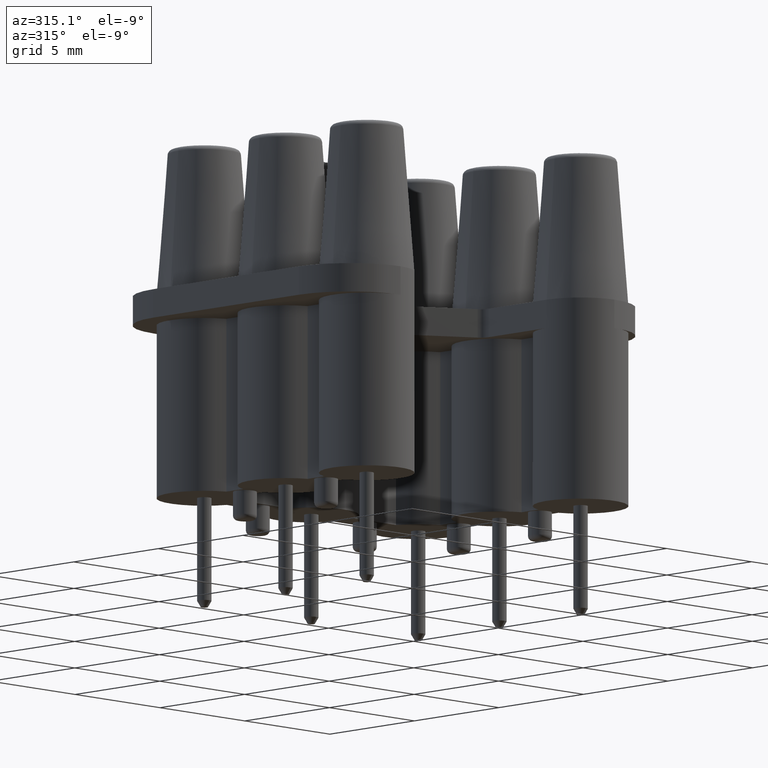
[diagram: clean part render]
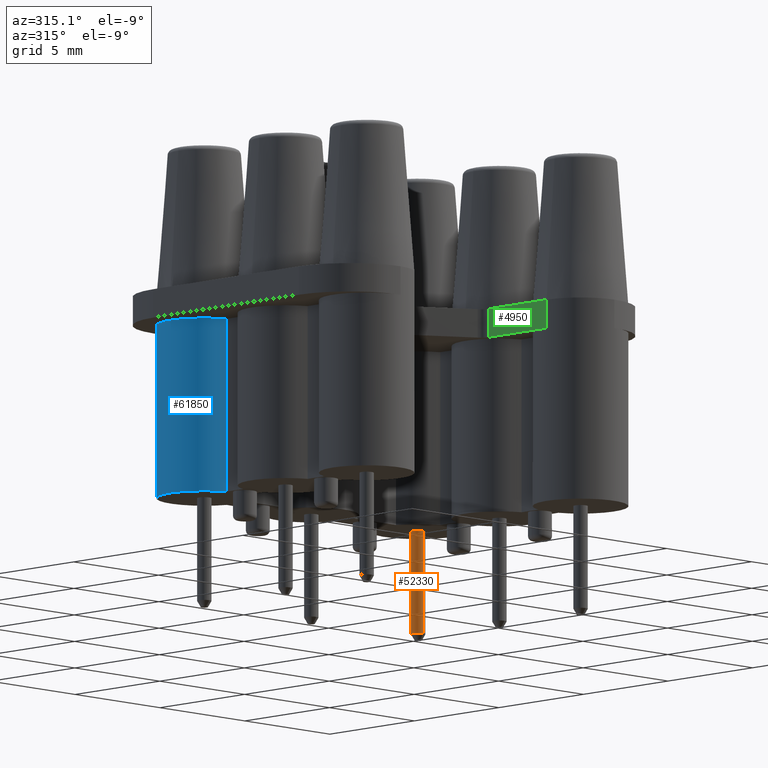
[diagram: same view with three faces highlighted in distinct colors, each labeled with its STEP entity id]
A machine part, auxiliary view with three faces highlighted in distinct colors.
Their STEP definitions:

[orange] entity #52330 — the highlighted cylindrical surface (edge-blend (fillet) strip) has radius 0.3 mm, axis along (0, 0, -1).
#24580=CARTESIAN_POINT('',(37.7129610115911,58.9,12.840192313523));
#24590=VERTEX_POINT('',#24580);
#24670=CARTESIAN_POINT('',(37.7129610115911,58.3,12.840192313523));
#24680=VERTEX_POINT('',#24670);
#24710=CARTESIAN_POINT('',(37.7129610115911,58.6,12.840192313523));
#24720=DIRECTION('',(0.,0.,1.));
#24730=DIRECTION('',(0.,-1.,0.));
#24740=AXIS2_PLACEMENT_3D('',#24710,#24720,#24730);
#24750=CIRCLE('',#24740,0.3);
#25150=CARTESIAN_POINT('',(37.7129610115911,58.9,8.52009612409068));
#25160=DIRECTION('',(0.,0.,1.));
#25170=VECTOR('',#25160,1.);
#25180=LINE('',#25150,#25170);
#25190=CARTESIAN_POINT('',(37.7129610115911,58.9,8.5));
#25200=VERTEX_POINT('',#25190);
#25210=EDGE_CURVE('',#25200,#24590,#25180,.T.);
#25240=CARTESIAN_POINT('',(37.7129610115911,58.3,8.52009612409068));
#25250=DIRECTION('',(0.,0.,1.));
#25260=VECTOR('',#25250,1.);
#25270=LINE('',#25240,#25260);
#25280=CARTESIAN_POINT('',(37.7129610115911,58.3,8.5));
#25290=VERTEX_POINT('',#25280);
#25300=EDGE_CURVE('',#25290,#24680,#25270,.T.);
#25320=CARTESIAN_POINT('',(37.7129610115911,58.6,8.5));
#25330=DIRECTION('',(0.,0.,1.));
#25340=DIRECTION('',(0.,-1.,0.));
#25350=AXIS2_PLACEMENT_3D('',#25320,#25330,#25340);
#25360=CIRCLE('',#25350,0.3);
#34360=EDGE_CURVE('',#25290,#25200,#25360,.T.);
#52210=CARTESIAN_POINT('',(37.7129610115911,58.6,8.52009612409068));
#52220=DIRECTION('',(0.,0.,1.));
#52230=DIRECTION('',(0.,-1.,0.));
#52240=AXIS2_PLACEMENT_3D('',#52210,#52220,#52230);
#52250=CYLINDRICAL_SURFACE('',#52240,0.3);
#52260=EDGE_CURVE('',#24680,#24590,#24750,.T.);
#52270=ORIENTED_EDGE('',*,*,#52260,.F.);
#52280=ORIENTED_EDGE('',*,*,#25210,.T.);
#52290=ORIENTED_EDGE('',*,*,#34360,.T.);
#52300=ORIENTED_EDGE('',*,*,#25300,.F.);
#52310=EDGE_LOOP('',(#52300,#52290,#52280,#52270));
#52320=FACE_OUTER_BOUND('',#52310,.T.);
#52330=ADVANCED_FACE('',(#52320),#52250,.T.);

[blue] entity #61850 — the highlighted cylindrical surface (partial cylindrical patch) has radius 2 mm, axis along (0, 0, -1).
#1320=CARTESIAN_POINT('',(50.9129610115911,56.6921212081563,1.2));
#1330=VERTEX_POINT('',#1320);
#1360=CARTESIAN_POINT('',(50.3129610115911,58.6,1.2));
#1370=DIRECTION('',(0.,0.,-1.));
#1380=DIRECTION('',(1.,0.,0.));
#1390=AXIS2_PLACEMENT_3D('',#1360,#1370,#1380);
#1400=CIRCLE('',#1390,2.00000037109169);
#1410=CARTESIAN_POINT('',(48.4050822197475,59.2,1.2));
#1420=VERTEX_POINT('',#1410);
#1430=EDGE_CURVE('',#1420,#1330,#1400,.T.);
#10440=CARTESIAN_POINT('',(50.9129610115911,56.6921212081563,8.5));
#10450=VERTEX_POINT('',#10440);
#10480=CARTESIAN_POINT('',(50.9129610115911,56.6921212081563,1.2));
#10490=DIRECTION('',(0.,0.,1.));
#10500=VECTOR('',#10490,1.);
#10510=LINE('',#10480,#10500);
#10520=EDGE_CURVE('',#1330,#10450,#10510,.T.);
#22980=CARTESIAN_POINT('',(50.3129610115911,58.6,1.2));
#22990=DIRECTION('',(0.,0.,1.));
#23000=DIRECTION('',(1.,0.,0.));
#23010=AXIS2_PLACEMENT_3D('',#22980,#22990,#23000);
#23020=CYLINDRICAL_SURFACE('',#23010,2.00000037109169);
#23130=CARTESIAN_POINT('',(50.3129610115911,58.6,8.5));
#23140=DIRECTION('',(0.,0.,1.));
#23150=DIRECTION('',(1.,0.,0.));
#23160=AXIS2_PLACEMENT_3D('',#23130,#23140,#23150);
#23170=CIRCLE('',#23160,2.00000037109169);
#30780=CARTESIAN_POINT('',(48.4050822197475,59.2,1.2));
#30790=DIRECTION('',(0.,0.,1.));
#30800=VECTOR('',#30790,1.);
#30810=LINE('',#30780,#30800);
#30820=CARTESIAN_POINT('',(48.4050822197475,59.2,8.5));
#30830=VERTEX_POINT('',#30820);
#30840=EDGE_CURVE('',#1420,#30830,#30810,.T.);
#36270=EDGE_CURVE('',#10450,#30830,#23170,.T.);
#61790=ORIENTED_EDGE('',*,*,#30840,.T.);
#61800=ORIENTED_EDGE('',*,*,#1430,.F.);
#61810=ORIENTED_EDGE('',*,*,#10520,.F.);
#61820=ORIENTED_EDGE('',*,*,#36270,.F.);
#61830=EDGE_LOOP('',(#61820,#61810,#61800,#61790));
#61840=FACE_OUTER_BOUND('',#61830,.T.);
#61850=ADVANCED_FACE('',(#61840),#23020,.T.);

[green] entity #4950 — the highlighted planar face has unit normal (1, 0, 0).
#4560=CARTESIAN_POINT('',(39.7129610115911,0.,1.2));
#4570=DIRECTION('',(-1.,0.,0.));
#4580=DIRECTION('',(0.,1.,0.));
#4590=AXIS2_PLACEMENT_3D('',#4560,#4570,#4580);
#4600=PLANE('',#4590);
#4610=CARTESIAN_POINT('',(39.7129610115911,0.,0.));
#4620=DIRECTION('',(0.,1.,0.));
#4630=VECTOR('',#4620,1.);
#4640=LINE('',#4610,#4630);
#4650=CARTESIAN_POINT('',(39.7129610115911,49.,0.));
#4660=VERTEX_POINT('',#4650);
#4670=CARTESIAN_POINT('',(39.7129610115911,52.4060689770794,0.));
#4680=VERTEX_POINT('',#4670);
#4690=EDGE_CURVE('',#4660,#4680,#4640,.T.);
#4700=ORIENTED_EDGE('',*,*,#4690,.T.);
#4710=CARTESIAN_POINT('',(39.7129610115911,49.,1.2));
#4720=DIRECTION('',(0.,0.,1.));
#4730=VECTOR('',#4720,1.);
#4740=LINE('',#4710,#4730);
#4750=CARTESIAN_POINT('',(39.7129610115911,49.,1.2));
#4760=VERTEX_POINT('',#4750);
#4770=EDGE_CURVE('',#4660,#4760,#4740,.T.);
#4780=ORIENTED_EDGE('',*,*,#4770,.F.);
#4790=CARTESIAN_POINT('',(39.7129610115911,0.,1.19999999999958));
#4800=DIRECTION('',(0.,1.,0.));
#4810=VECTOR('',#4800,1.);
#4820=LINE('',#4790,#4810);
#4830=CARTESIAN_POINT('',(39.7129610115911,52.4060689770794,1.2));
#4840=VERTEX_POINT('',#4830);
#4850=EDGE_CURVE('',#4760,#4840,#4820,.T.);
#4860=ORIENTED_EDGE('',*,*,#4850,.F.);
#4870=CARTESIAN_POINT('',(39.7129610115911,52.4060689770794,0.));
#4880=DIRECTION('',(0.,0.,-1.));
#4890=VECTOR('',#4880,1.);
#4900=LINE('',#4870,#4890);
#4910=EDGE_CURVE('',#4840,#4680,#4900,.T.);
#4920=ORIENTED_EDGE('',*,*,#4910,.F.);
#4930=EDGE_LOOP('',(#4920,#4860,#4780,#4700));
#4940=FACE_OUTER_BOUND('',#4930,.T.);
#4950=ADVANCED_FACE('',(#4940),#4600,.F.);